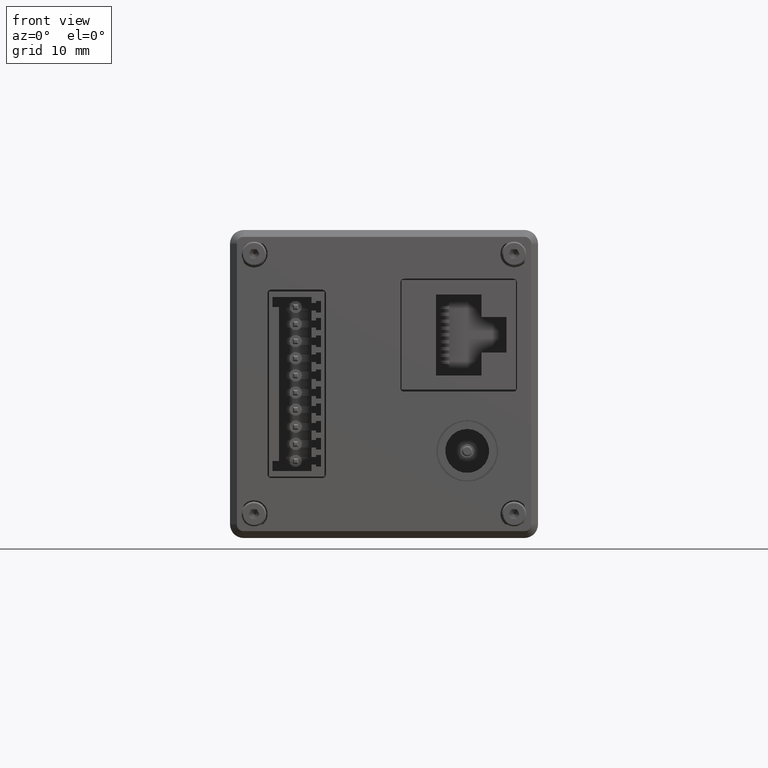
[diagram: clean part render]
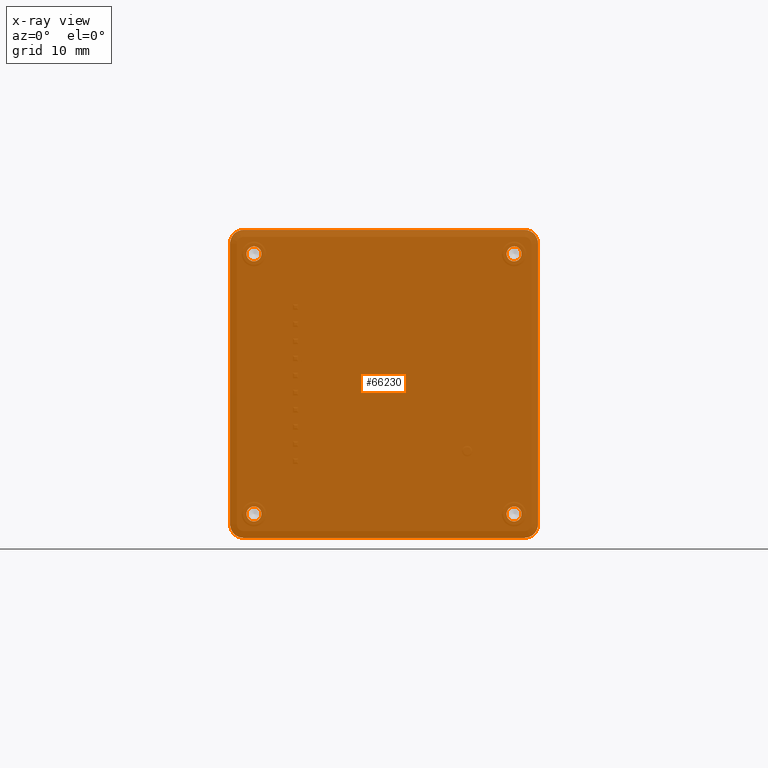
[diagram: x-ray — body ghosted, one internal face saturated and labeled with its STEP entity id]
A machine part, front view, then the same camera in x-ray: the body is ghosted and one INTERNAL B-rep face — a face not visible from any outside direction — is saturated and labeled: STEP entity #66230.
In plain terms, the highlighted planar face has unit normal (-0, 1, 0).
Its self-contained STEP definition (entity closure, byte-faithful):
#581 = EDGE_CURVE ( 'NONE', #7972, #26247, #24190, .T. ) ;
#1585 = DIRECTION ( 'NONE',  ( -0.000000000000000000, 1.000000000000000000, -0.000000000000000000 ) ) ;
#1986 = CARTESIAN_POINT ( 'NONE',  ( 20.49999791572821906, -9.099800000000001887, -20.49999547456320315 ) ) ;
#2200 = CARTESIAN_POINT ( 'NONE',  ( 18.99999791572821550, -9.099800000000001887, 20.10000452543679472 ) ) ;
#2385 = ORIENTED_EDGE ( 'NONE', *, *, #15561, .F. ) ;
#2430 = CIRCLE ( 'NONE', #63630, 1.100000000000000311 ) ;
#3125 = VERTEX_POINT ( 'NONE', #2200 ) ;
#3325 = AXIS2_PLACEMENT_3D ( 'NONE', #77457, #69530, #33983 ) ;
#4683 = CARTESIAN_POINT ( 'NONE',  ( 20.49999791572821906, -9.099800000000001887, -22.49999547456320315 ) ) ;
#5306 = EDGE_LOOP ( 'NONE', ( #7400 ) ) ;
#5418 = EDGE_CURVE ( 'NONE', #72726, #47606, #54450, .T. ) ;
#6443 = AXIS2_PLACEMENT_3D ( 'NONE', #54511, #56352, #40465 ) ;
#7213 = VECTOR ( 'NONE', #26273, 1000.000000000000000 ) ;
#7400 = ORIENTED_EDGE ( 'NONE', *, *, #52490, .F. ) ;
#7972 = VERTEX_POINT ( 'NONE', #46210 ) ;
#8286 = AXIS2_PLACEMENT_3D ( 'NONE', #1986, #10844, #32359 ) ;
#8585 = CARTESIAN_POINT ( 'NONE',  ( -20.50000208427178450, -9.099800000000001887, 20.50000452543679685 ) ) ;
#10844 = DIRECTION ( 'NONE',  ( -0.000000000000000000, 1.000000000000000000, -0.000000000000000000 ) ) ;
#11276 = ORIENTED_EDGE ( 'NONE', *, *, #5418, .F. ) ;
#12408 = FACE_OUTER_BOUND ( 'NONE', #79338, .T. ) ;
#12758 = VERTEX_POINT ( 'NONE', #34249 ) ;
#13213 = AXIS2_PLACEMENT_3D ( 'NONE', #81799, #39716, #40179 ) ;
#13332 = FACE_BOUND ( 'NONE', #24802, .T. ) ;
#14111 = VECTOR ( 'NONE', #75725, 1000.000000000000000 ) ;
#15561 = EDGE_CURVE ( 'NONE', #43824, #43824, #16629, .T. ) ;
#16629 = CIRCLE ( 'NONE', #68906, 1.100000000000000311 ) ;
#17066 = ORIENTED_EDGE ( 'NONE', *, *, #39304, .F. ) ;
#18637 = CARTESIAN_POINT ( 'NONE',  ( 20.49999791572821550, -9.099800000000001887, 22.50000452543679685 ) ) ;
#20139 = VERTEX_POINT ( 'NONE', #29602 ) ;
#22519 = ORIENTED_EDGE ( 'NONE', *, *, #68813, .F. ) ;
#22533 = EDGE_CURVE ( 'NONE', #42288, #72726, #83080, .T. ) ;
#22639 = EDGE_CURVE ( 'NONE', #3125, #3125, #59211, .T. ) ;
#22810 = VECTOR ( 'NONE', #26752, 1000.000000000000000 ) ;
#22885 = ORIENTED_EDGE ( 'NONE', *, *, #89448, .F. ) ;
#23083 = DIRECTION ( 'NONE',  ( 0.000000000000000000, 0.000000000000000000, -1.000000000000000000 ) ) ;
#23707 = DIRECTION ( 'NONE',  ( -0.000000000000000000, -1.000000000000000000, -0.000000000000000000 ) ) ;
#23932 = AXIS2_PLACEMENT_3D ( 'NONE', #88699, #23707, #38689 ) ;
#24123 = DIRECTION ( 'NONE',  ( -0.000000000000000000, -1.000000000000000000, -0.000000000000000000 ) ) ;
#24190 = CIRCLE ( 'NONE', #3325, 1.999999999999998224 ) ;
#24802 = EDGE_LOOP ( 'NONE', ( #63866 ) ) ;
#26247 = VERTEX_POINT ( 'NONE', #44845 ) ;
#26273 = DIRECTION ( 'NONE',  ( 0.000000000000000000, -0.000000000000000000, 1.000000000000000000 ) ) ;
#26291 = CARTESIAN_POINT ( 'NONE',  ( -2.084271784497000633E-06, -9.099800000000000111, -22.49999547456320315 ) ) ;
#26752 = DIRECTION ( 'NONE',  ( -1.000000000000000000, -0.000000000000000000, -0.000000000000000000 ) ) ;
#28407 = CARTESIAN_POINT ( 'NONE',  ( -19.00000208427178094, -9.099800000000001887, 20.10000452543679472 ) ) ;
#29602 = CARTESIAN_POINT ( 'NONE',  ( 22.49999791572821550, -9.099800000000001887, 20.50000452543679685 ) ) ;
#30248 = CARTESIAN_POINT ( 'NONE',  ( -20.50000208427178450, -9.099800000000001887, 22.50000452543679685 ) ) ;
#32359 = DIRECTION ( 'NONE',  ( 0.000000000000000000, 0.000000000000000000, -1.000000000000000000 ) ) ;
#33905 = PLANE ( 'NONE',  #6443 ) ;
#33983 = DIRECTION ( 'NONE',  ( 0.000000000000000000, 0.000000000000000000, -1.000000000000000000 ) ) ;
#34099 = CIRCLE ( 'NONE', #13213, 1.999999999999998224 ) ;
#34249 = CARTESIAN_POINT ( 'NONE',  ( -19.00000208427178094, -9.099800000000001887, -17.89999547456320173 ) ) ;
#36107 = EDGE_CURVE ( 'NONE', #12758, #12758, #67293, .T. ) ;
#38510 = DIRECTION ( 'NONE',  ( -0.000000000000000000, -1.000000000000000000, -0.000000000000000000 ) ) ;
#38689 = DIRECTION ( 'NONE',  ( 0.000000000000000000, 0.000000000000000000, 1.000000000000000000 ) ) ;
#39162 = CARTESIAN_POINT ( 'NONE',  ( 22.49999791572821550, -9.099800000000001887, -20.49999547456320315 ) ) ;
#39304 = EDGE_CURVE ( 'NONE', #47606, #20139, #34099, .T. ) ;
#39485 = DIRECTION ( 'NONE',  ( 1.000000000000000000, 0.000000000000000000, -0.000000000000000000 ) ) ;
#39716 = DIRECTION ( 'NONE',  ( -0.000000000000000000, 1.000000000000000000, -0.000000000000000000 ) ) ;
#39843 = CARTESIAN_POINT ( 'NONE',  ( -22.50000208427178094, -9.099800000000000111, 4.525436797722999667E-06 ) ) ;
#40179 = DIRECTION ( 'NONE',  ( 0.000000000000000000, 0.000000000000000000, -1.000000000000000000 ) ) ;
#40465 = DIRECTION ( 'NONE',  ( 0.000000000000000000, -0.000000000000000000, 1.000000000000000000 ) ) ;
#42288 = VERTEX_POINT ( 'NONE', #57978 ) ;
#42775 = AXIS2_PLACEMENT_3D ( 'NONE', #65174, #38510, #67032 ) ;
#43824 = VERTEX_POINT ( 'NONE', #28407 ) ;
#44845 = CARTESIAN_POINT ( 'NONE',  ( -22.50000208427178094, -9.099800000000001887, -20.49999547456320315 ) ) ;
#46210 = CARTESIAN_POINT ( 'NONE',  ( -20.50000208427178094, -9.099800000000001887, -22.49999547456320315 ) ) ;
#47496 = FACE_BOUND ( 'NONE', #86386, .T. ) ;
#47606 = VERTEX_POINT ( 'NONE', #18637 ) ;
#49583 = VERTEX_POINT ( 'NONE', #4683 ) ;
#50141 = VERTEX_POINT ( 'NONE', #78653 ) ;
#50454 = EDGE_LOOP ( 'NONE', ( #2385 ) ) ;
#51496 = DIRECTION ( 'NONE',  ( -0.000000000000000000, -1.000000000000000000, -0.000000000000000000 ) ) ;
#51741 = AXIS2_PLACEMENT_3D ( 'NONE', #8585, #1585, #23083 ) ;
#52490 = EDGE_CURVE ( 'NONE', #50141, #50141, #2430, .T. ) ;
#54450 = LINE ( 'NONE', #88572, #80739 ) ;
#54511 = CARTESIAN_POINT ( 'NONE',  ( -2.084271784497000633E-06, -9.099800000000000111, 4.525436797722999667E-06 ) ) ;
#56352 = DIRECTION ( 'NONE',  ( -0.000000000000000000, 1.000000000000000000, 0.000000000000000000 ) ) ;
#57016 = ORIENTED_EDGE ( 'NONE', *, *, #36107, .F. ) ;
#57584 = CARTESIAN_POINT ( 'NONE',  ( -19.00000208427178094, -9.099800000000001887, 19.00000452543679685 ) ) ;
#57978 = CARTESIAN_POINT ( 'NONE',  ( -22.50000208427178094, -9.099800000000001887, 20.50000452543679685 ) ) ;
#59021 = VERTEX_POINT ( 'NONE', #39162 ) ;
#59211 = CIRCLE ( 'NONE', #42775, 1.100000000000000311 ) ;
#60150 = CARTESIAN_POINT ( 'NONE',  ( 18.99999791572821550, -9.099800000000001887, -18.99999547456320315 ) ) ;
#61305 = EDGE_CURVE ( 'NONE', #49583, #7972, #75419, .T. ) ;
#62892 = ORIENTED_EDGE ( 'NONE', *, *, #581, .F. ) ;
#63630 = AXIS2_PLACEMENT_3D ( 'NONE', #60150, #24123, #67624 ) ;
#63866 = ORIENTED_EDGE ( 'NONE', *, *, #22639, .F. ) ;
#64573 = DIRECTION ( 'NONE',  ( 0.000000000000000000, 0.000000000000000000, 1.000000000000000000 ) ) ;
#65174 = CARTESIAN_POINT ( 'NONE',  ( 18.99999791572821550, -9.099800000000001887, 19.00000452543679685 ) ) ;
#66230 = ADVANCED_FACE ( 'NONE', ( #13332, #70376, #47496, #84383, #12408 ), #33905, .F. ) ;
#67032 = DIRECTION ( 'NONE',  ( 0.000000000000000000, 0.000000000000000000, 1.000000000000000000 ) ) ;
#67293 = CIRCLE ( 'NONE', #23932, 1.100000000000000311 ) ;
#67624 = DIRECTION ( 'NONE',  ( 0.000000000000000000, 0.000000000000000000, 1.000000000000000000 ) ) ;
#68250 = LINE ( 'NONE', #83646, #14111 ) ;
#68813 = EDGE_CURVE ( 'NONE', #59021, #49583, #69519, .T. ) ;
#68906 = AXIS2_PLACEMENT_3D ( 'NONE', #57584, #51496, #64573 ) ;
#69377 = EDGE_CURVE ( 'NONE', #20139, #59021, #68250, .T. ) ;
#69519 = CIRCLE ( 'NONE', #8286, 1.999999999999998224 ) ;
#69530 = DIRECTION ( 'NONE',  ( -0.000000000000000000, 1.000000000000000000, -0.000000000000000000 ) ) ;
#70376 = FACE_BOUND ( 'NONE', #5306, .T. ) ;
#72726 = VERTEX_POINT ( 'NONE', #30248 ) ;
#75419 = LINE ( 'NONE', #26291, #22810 ) ;
#75725 = DIRECTION ( 'NONE',  ( -0.000000000000000000, 0.000000000000000000, -1.000000000000000000 ) ) ;
#77457 = CARTESIAN_POINT ( 'NONE',  ( -20.50000208427178450, -9.099800000000001887, -20.49999547456320315 ) ) ;
#78234 = ORIENTED_EDGE ( 'NONE', *, *, #22533, .F. ) ;
#78653 = CARTESIAN_POINT ( 'NONE',  ( 18.99999791572821550, -9.099800000000001887, -17.89999547456320173 ) ) ;
#79338 = EDGE_LOOP ( 'NONE', ( #22519, #91819, #17066, #11276, #78234, #22885, #62892, #83281 ) ) ;
#80739 = VECTOR ( 'NONE', #39485, 1000.000000000000000 ) ;
#81799 = CARTESIAN_POINT ( 'NONE',  ( 20.49999791572821906, -9.099800000000001887, 20.50000452543679685 ) ) ;
#82849 = LINE ( 'NONE', #39843, #7213 ) ;
#83080 = CIRCLE ( 'NONE', #51741, 1.999999999999998224 ) ;
#83281 = ORIENTED_EDGE ( 'NONE', *, *, #61305, .F. ) ;
#83646 = CARTESIAN_POINT ( 'NONE',  ( 22.49999791572821550, -9.099800000000000111, 4.525436797722999667E-06 ) ) ;
#84383 = FACE_BOUND ( 'NONE', #50454, .T. ) ;
#86386 = EDGE_LOOP ( 'NONE', ( #57016 ) ) ;
#88572 = CARTESIAN_POINT ( 'NONE',  ( -22.50000208427178094, -9.099800000000000111, 22.50000452543679685 ) ) ;
#88699 = CARTESIAN_POINT ( 'NONE',  ( -19.00000208427178094, -9.099800000000001887, -18.99999547456320315 ) ) ;
#89448 = EDGE_CURVE ( 'NONE', #26247, #42288, #82849, .T. ) ;
#91819 = ORIENTED_EDGE ( 'NONE', *, *, #69377, .F. ) ;